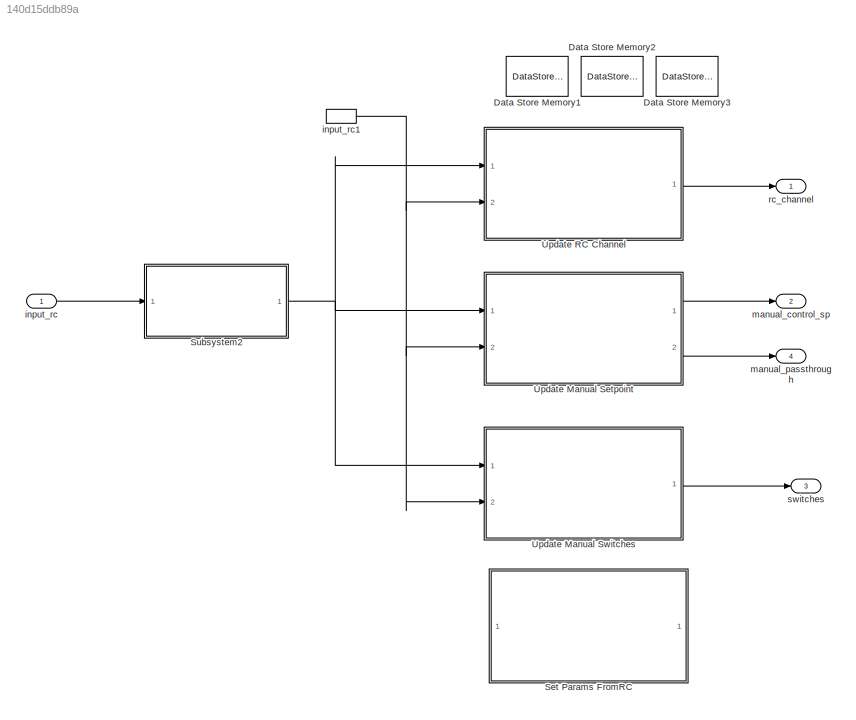
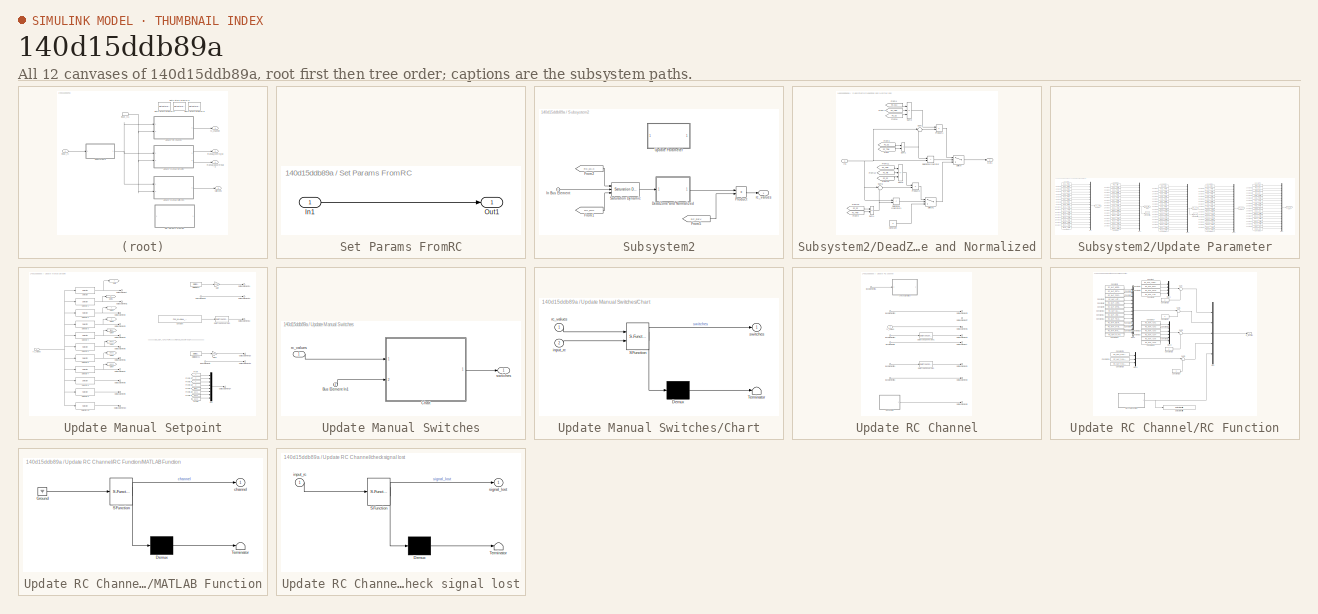
[diagram: thumbnail index - all 12 canvases of the model, root first then tree order]
MODEL slx_140d15ddb89a
KIND model
CONFIG AbsTol = auto
CONFIG EnableMultiTasking = off
CONFIG FixedStep = auto
CONFIG MaxStep = auto
CONFIG MinStep = auto
CONFIG RelTol = 1e-3
CONFIG SampleTimeConstraint = Unconstrained
CONFIG SolverName = VariableStepAuto
CONFIG StartTime = 0.0
CONFIG StopTime = 10.0
BLOCK [DataStoreMemory] Data Store Memory1
  DataStoreName = RC_MIN
  Dimensions = 18
  OutDataTypeStr = single
  ReadBeforeWriteMsg = warning
  ShowAdditionalParam = off
  SignalType = real
  WriteAfterReadMsg = warning
  WriteAfterWriteMsg = warning
BLOCK [DataStoreMemory] Data Store Memory2
  DataStoreName = RC_MAX
  Dimensions = 18
  OutDataTypeStr = single
  ReadBeforeWriteMsg = warning
  ShowAdditionalParam = off
  SignalType = real
  WriteAfterReadMsg = warning
  WriteAfterWriteMsg = warning
BLOCK [DataStoreMemory] Data Store Memory3
  DataStoreName = RC_MAP_FLIGHT_MODE_BUTTONS
  Dimensions = 6
  OutDataTypeStr = int8
  ReadBeforeWriteMsg = warning
  ShowAdditionalParam = off
  SignalType = real
  WriteAfterReadMsg = warning
  WriteAfterWriteMsg = warning
BLOCK [SubSystem] Set Params FromRC
  Commented = on
  Ports = [1, 1]
  RequestExecContextInheritance = off
BLOCK [Inport] Set Params FromRC/In1
BLOCK [Outport] Set Params FromRC/Out1
BLOCK [SubSystem] Subsystem2
  Ports = [1, 1]
  RequestExecContextInheritance = off
BLOCK [SubSystem] Subsystem2/DeadZone and Normalized
  Ports = [1, 1]
  RequestExecContextInheritance = off
BLOCK [Constant] Subsystem2/DeadZone and Normalized/Constant
  OutDataTypeStr = single
  Value = 0
BLOCK [From] Subsystem2/DeadZone and Normalized/From
  GotoTag = RC_TRIM
  TagVisibility = global
BLOCK [From] Subsystem2/DeadZone and Normalized/From10
  GotoTag = RC_DZ
  TagVisibility = global
BLOCK [From] Subsystem2/DeadZone and Normalized/From11
  GotoTag = RC_TRIM
  TagVisibility = global
BLOCK [From] Subsystem2/DeadZone and Normalized/From12
  GotoTag = RC_MIN
  TagVisibility = global
BLOCK [From] Subsystem2/DeadZone and Normalized/From13
  GotoTag = RC_DZ
  TagVisibility = global
BLOCK [From] Subsystem2/DeadZone and Normalized/From3
  GotoTag = RC_DZ
  TagVisibility = global
BLOCK [From] Subsystem2/DeadZone and Normalized/From4
  GotoTag = RC_MAX
  TagVisibility = global
BLOCK [From] Subsystem2/DeadZone and Normalized/From7
  GotoTag = RC_TRIM
  TagVisibility = global
BLOCK [From] Subsystem2/DeadZone and Normalized/From8
  GotoTag = RC_DZ
  TagVisibility = global
BLOCK [From] Subsystem2/DeadZone and Normalized/From9
  GotoTag = RC_TRIM
  TagVisibility = global
BLOCK [Inport] Subsystem2/DeadZone and Normalized/In1
BLOCK [Outport] Subsystem2/DeadZone and Normalized/Out1
BLOCK [Product] Subsystem2/DeadZone and Normalized/Product1
  Inputs = /*
  Ports = [2, 1]
BLOCK [Product] Subsystem2/DeadZone and Normalized/Product2
  Inputs = /*
  Ports = [2, 1]
BLOCK [RelationalOperator] Subsystem2/DeadZone and Normalized/Relational Operator
  InputSameDT = off
  Operator = <
  OutDataTypeStr = boolean
  Ports = [2, 1]
  RndMeth = Simplest
BLOCK [RelationalOperator] Subsystem2/DeadZone and Normalized/Relational Operator1
  InputSameDT = off
  Operator = <
  OutDataTypeStr = boolean
  Ports = [2, 1]
  RndMeth = Simplest
BLOCK [Sum] Subsystem2/DeadZone and Normalized/Sum1
  IconShape = rectangular
  Inputs = 2
  Ports = [2, 1]
BLOCK [Sum] Subsystem2/DeadZone and Normalized/Sum2
  Inputs = |+-
  Ports = [2, 1]
BLOCK [Sum] Subsystem2/DeadZone and Normalized/Sum3
  IconShape = rectangular
  Inputs = +--
  Ports = [3, 1]
BLOCK [Sum] Subsystem2/DeadZone and Normalized/Sum4
  IconShape = rectangular
  Inputs = -+
  Ports = [2, 1]
BLOCK [Sum] Subsystem2/DeadZone and Normalized/Sum5
  Inputs = |+-
  Ports = [2, 1]
BLOCK [Sum] Subsystem2/DeadZone and Normalized/Sum6
  IconShape = rectangular
  Inputs = +--
  Ports = [3, 1]
BLOCK [Switch] Subsystem2/DeadZone and Normalized/Switch
  Criteria = u2 > Threshold
  InputSameDT = off
  SaturateOnIntegerOverflow = off
BLOCK [Switch] Subsystem2/DeadZone and Normalized/Switch1
  Criteria = u2 > Threshold
  InputSameDT = off
  SaturateOnIntegerOverflow = off
BLOCK [From] Subsystem2/From1
  GotoTag = RC_MIN
  TagVisibility = global
BLOCK [From] Subsystem2/From2
  GotoTag = RC_MAX
  TagVisibility = global
BLOCK [From] Subsystem2/From5
  GotoTag = RC_REV
  TagVisibility = global
BLOCK [Inport] Subsystem2/In Bus Element
BLOCK [Product] Subsystem2/Product
  Ports = [2, 1]
BLOCK [Reference] Subsystem2/Saturation Dynamic  REF=simulink/Discontinuities/Saturation
Dynamic
  Ports = [3, 1]
  SourceBlock = simulink/Discontinuities/Saturation\nDynamic
  SourceProductBaseCode = SL
  SourceType = Saturation Dynamic
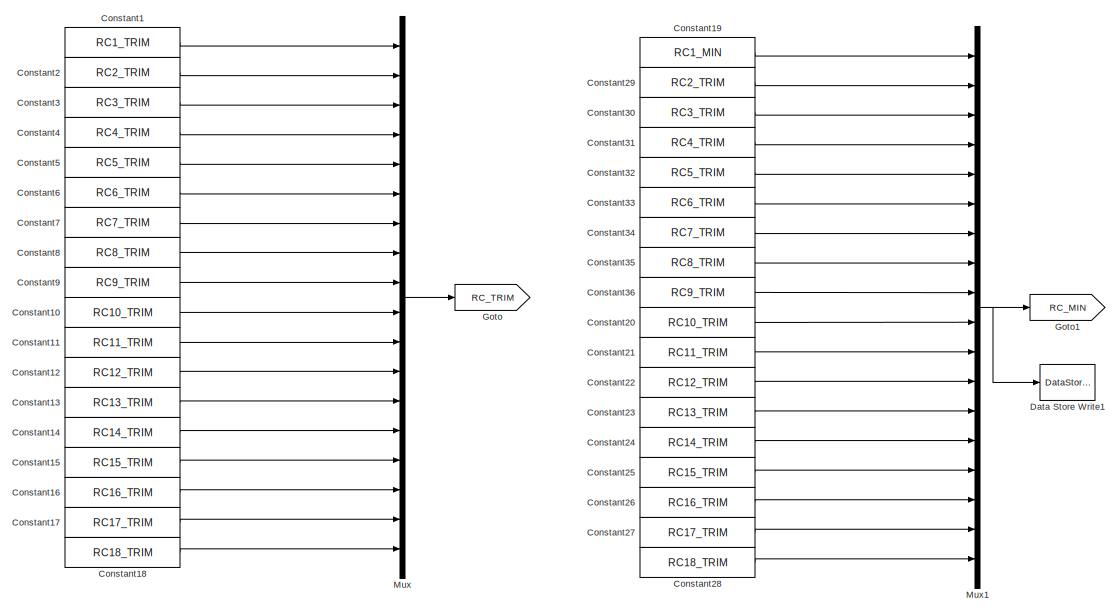
[diagram: Subsystem2/Update Parameter - part 1/3, left side, full height]
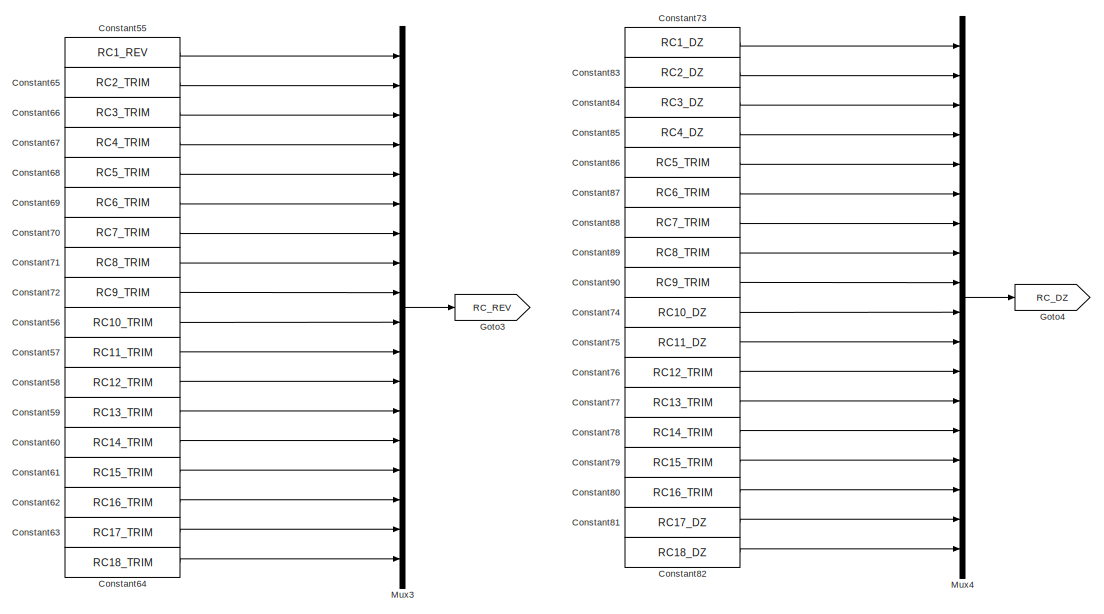
[diagram: Subsystem2/Update Parameter - part 2/3, right side, full height]
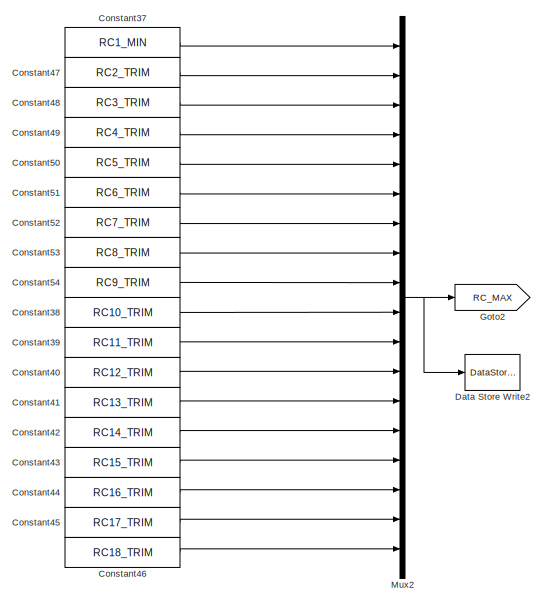
[diagram: Subsystem2/Update Parameter - part 3/3, center side, full height]
BLOCK [SubSystem] Subsystem2/Update Parameter
  Ports = []
  RequestExecContextInheritance = off
BLOCK [Constant] Subsystem2/Update Parameter/Constant1
  Value = RC1_TRIM
BLOCK [Constant] Subsystem2/Update Parameter/Constant10
  Value = RC10_TRIM
BLOCK [Constant] Subsystem2/Update Parameter/Constant11
  Value = RC11_TRIM
BLOCK [Constant] Subsystem2/Update Parameter/Constant12
  Value = RC12_TRIM
BLOCK [Constant] Subsystem2/Update Parameter/Constant13
  Value = RC13_TRIM
BLOCK [Constant] Subsystem2/Update Parameter/Constant14
  Value = RC14_TRIM
BLOCK [Constant] Subsystem2/Update Parameter/Constant15
  Value = RC15_TRIM
BLOCK [Constant] Subsystem2/Update Parameter/Constant16
  Value = RC16_TRIM
BLOCK [Constant] Subsystem2/Update Parameter/Constant17
  Value = RC17_TRIM
BLOCK [Constant] Subsystem2/Update Parameter/Constant18
  Value = RC18_TRIM
BLOCK [Constant] Subsystem2/Update Parameter/Constant19
  Value = RC1_MIN
BLOCK [Constant] Subsystem2/Update Parameter/Constant2
  Value = RC2_TRIM
BLOCK [Constant] Subsystem2/Update Parameter/Constant20
  Value = RC10_TRIM
BLOCK [Constant] Subsystem2/Update Parameter/Constant21
  Value = RC11_TRIM
BLOCK [Constant] Subsystem2/Update Parameter/Constant22
  Value = RC12_TRIM
BLOCK [Constant] Subsystem2/Update Parameter/Constant23
  Value = RC13_TRIM
BLOCK [Constant] Subsystem2/Update Parameter/Constant24
  Value = RC14_TRIM
BLOCK [Constant] Subsystem2/Update Parameter/Constant25
  Value = RC15_TRIM
BLOCK [Constant] Subsystem2/Update Parameter/Constant26
  Value = RC16_TRIM
BLOCK [Constant] Subsystem2/Update Parameter/Constant27
  Value = RC17_TRIM
BLOCK [Constant] Subsystem2/Update Parameter/Constant28
  Value = RC18_TRIM
BLOCK [Constant] Subsystem2/Update Parameter/Constant29
  Value = RC2_TRIM
BLOCK [Constant] Subsystem2/Update Parameter/Constant3
  Value = RC3_TRIM
BLOCK [Constant] Subsystem2/Update Parameter/Constant30
  Value = RC3_TRIM
BLOCK [Constant] Subsystem2/Update Parameter/Constant31
  Value = RC4_TRIM
BLOCK [Constant] Subsystem2/Update Parameter/Constant32
  Value = RC5_TRIM
BLOCK [Constant] Subsystem2/Update Parameter/Constant33
  Value = RC6_TRIM
BLOCK [Constant] Subsystem2/Update Parameter/Constant34
  Value = RC7_TRIM
BLOCK [Constant] Subsystem2/Update Parameter/Constant35
  Value = RC8_TRIM
BLOCK [Constant] Subsystem2/Update Parameter/Constant36
  Value = RC9_TRIM
BLOCK [Constant] Subsystem2/Update Parameter/Constant37
  Value = RC1_MIN
BLOCK [Constant] Subsystem2/Update Parameter/Constant38
  Value = RC10_TRIM
BLOCK [Constant] Subsystem2/Update Parameter/Constant39
  Value = RC11_TRIM
BLOCK [Constant] Subsystem2/Update Parameter/Constant4
  Value = RC4_TRIM
BLOCK [Constant] Subsystem2/Update Parameter/Constant40
  Value = RC12_TRIM
BLOCK [Constant] Subsystem2/Update Parameter/Constant41
  Value = RC13_TRIM
BLOCK [Constant] Subsystem2/Update Parameter/Constant42
  Value = RC14_TRIM
BLOCK [Constant] Subsystem2/Update Parameter/Constant43
  Value = RC15_TRIM
BLOCK [Constant] Subsystem2/Update Parameter/Constant44
  Value = RC16_TRIM
BLOCK [Constant] Subsystem2/Update Parameter/Constant45
  Value = RC17_TRIM
BLOCK [Constant] Subsystem2/Update Parameter/Constant46
  Value = RC18_TRIM
BLOCK [Constant] Subsystem2/Update Parameter/Constant47
  Value = RC2_TRIM
BLOCK [Constant] Subsystem2/Update Parameter/Constant48
  Value = RC3_TRIM
BLOCK [Constant] Subsystem2/Update Parameter/Constant49
  Value = RC4_TRIM
BLOCK [Constant] Subsystem2/Update Parameter/Constant5
  Value = RC5_TRIM
BLOCK [Constant] Subsystem2/Update Parameter/Constant50
  Value = RC5_TRIM
BLOCK [Constant] Subsystem2/Update Parameter/Constant51
  Value = RC6_TRIM
BLOCK [Constant] Subsystem2/Update Parameter/Constant52
  Value = RC7_TRIM
BLOCK [Constant] Subsystem2/Update Parameter/Constant53
  Value = RC8_TRIM
BLOCK [Constant] Subsystem2/Update Parameter/Constant54
  Value = RC9_TRIM
BLOCK [Constant] Subsystem2/Update Parameter/Constant55
  Value = RC1_REV
BLOCK [Constant] Subsystem2/Update Parameter/Constant56
  Value = RC10_TRIM
BLOCK [Constant] Subsystem2/Update Parameter/Constant57
  Value = RC11_TRIM
BLOCK [Constant] Subsystem2/Update Parameter/Constant58
  Value = RC12_TRIM
BLOCK [Constant] Subsystem2/Update Parameter/Constant59
  Value = RC13_TRIM
BLOCK [Constant] Subsystem2/Update Parameter/Constant6
  Value = RC6_TRIM
BLOCK [Constant] Subsystem2/Update Parameter/Constant60
  Value = RC14_TRIM
BLOCK [Constant] Subsystem2/Update Parameter/Constant61
  Value = RC15_TRIM
BLOCK [Constant] Subsystem2/Update Parameter/Constant62
  Value = RC16_TRIM
BLOCK [Constant] Subsystem2/Update Parameter/Constant63
  Value = RC17_TRIM
BLOCK [Constant] Subsystem2/Update Parameter/Constant64
  Value = RC18_TRIM
BLOCK [Constant] Subsystem2/Update Parameter/Constant65
  Value = RC2_TRIM
BLOCK [Constant] Subsystem2/Update Parameter/Constant66
  Value = RC3_TRIM
BLOCK [Constant] Subsystem2/Update Parameter/Constant67
  Value = RC4_TRIM
BLOCK [Constant] Subsystem2/Update Parameter/Constant68
  Value = RC5_TRIM
BLOCK [Constant] Subsystem2/Update Parameter/Constant69
  Value = RC6_TRIM
BLOCK [Constant] Subsystem2/Update Parameter/Constant7
  Value = RC7_TRIM
BLOCK [Constant] Subsystem2/Update Parameter/Constant70
  Value = RC7_TRIM
BLOCK [Constant] Subsystem2/Update Parameter/Constant71
  Value = RC8_TRIM
BLOCK [Constant] Subsystem2/Update Parameter/Constant72
  Value = RC9_TRIM
BLOCK [Constant] Subsystem2/Update Parameter/Constant73
  Value = RC1_DZ
BLOCK [Constant] Subsystem2/Update Parameter/Constant74
  Value = RC10_DZ
BLOCK [Constant] Subsystem2/Update Parameter/Constant75
  Value = RC11_DZ
BLOCK [Constant] Subsystem2/Update Parameter/Constant76
  Value = RC12_TRIM
BLOCK [Constant] Subsystem2/Update Parameter/Constant77
  Value = RC13_TRIM
BLOCK [Constant] Subsystem2/Update Parameter/Constant78
  Value = RC14_TRIM
BLOCK [Constant] Subsystem2/Update Parameter/Constant79
  Value = RC15_TRIM
BLOCK [Constant] Subsystem2/Update Parameter/Constant8
  Value = RC8_TRIM
BLOCK [Constant] Subsystem2/Update Parameter/Constant80
  Value = RC16_TRIM
BLOCK [Constant] Subsystem2/Update Parameter/Constant81
  Value = RC17_DZ
BLOCK [Constant] Subsystem2/Update Parameter/Constant82
  Value = RC18_DZ
BLOCK [Constant] Subsystem2/Update Parameter/Constant83
  Value = RC2_DZ
BLOCK [Constant] Subsystem2/Update Parameter/Constant84
  Value = RC3_DZ
BLOCK [Constant] Subsystem2/Update Parameter/Constant85
  Value = RC4_DZ
BLOCK [Constant] Subsystem2/Update Parameter/Constant86
  Value = RC5_TRIM
BLOCK [Constant] Subsystem2/Update Parameter/Constant87
  Value = RC6_TRIM
BLOCK [Constant] Subsystem2/Update Parameter/Constant88
  Value = RC7_TRIM
BLOCK [Constant] Subsystem2/Update Parameter/Constant89
  Value = RC8_TRIM
BLOCK [Constant] Subsystem2/Update Parameter/Constant9
  Value = RC9_TRIM
BLOCK [Constant] Subsystem2/Update Parameter/Constant90
  Value = RC9_TRIM
BLOCK [DataStoreWrite] Subsystem2/Update Parameter/Data Store Write1
  DataStoreName = RC_MIN
  IndexOptions = Index vector (dialog)
  Indices = 1
  OutputSizes = 1
  Ports = [1]
BLOCK [DataStoreWrite] Subsystem2/Update Parameter/Data Store Write2
  DataStoreName = RC_MAX
  IndexOptions = Index vector (dialog)
  Indices = 1
  OutputSizes = 1
  Ports = [1]
BLOCK [Goto] Subsystem2/Update Parameter/Goto
  GotoTag = RC_TRIM
  TagVisibility = global
BLOCK [Goto] Subsystem2/Update Parameter/Goto1
  GotoTag = RC_MIN
  TagVisibility = global
BLOCK [Goto] Subsystem2/Update Parameter/Goto2
  GotoTag = RC_MAX
  TagVisibility = global
BLOCK [Goto] Subsystem2/Update Parameter/Goto3
  GotoTag = RC_REV
  TagVisibility = global
BLOCK [Goto] Subsystem2/Update Parameter/Goto4
  GotoTag = RC_DZ
  TagVisibility = global
BLOCK [Mux] Subsystem2/Update Parameter/Mux
  DisplayOption = bar
  Inputs = 18
  Ports = [18, 1]
BLOCK [Mux] Subsystem2/Update Parameter/Mux1
  DisplayOption = bar
  Inputs = 18
  Ports = [18, 1]
BLOCK [Mux] Subsystem2/Update Parameter/Mux2
  DisplayOption = bar
  Inputs = 18
  Ports = [18, 1]
BLOCK [Mux] Subsystem2/Update Parameter/Mux3
  DisplayOption = bar
  Inputs = 18
  Ports = [18, 1]
BLOCK [Mux] Subsystem2/Update Parameter/Mux4
  DisplayOption = bar
  Inputs = 18
  Ports = [18, 1]
BLOCK [Outport] Subsystem2/rc_values
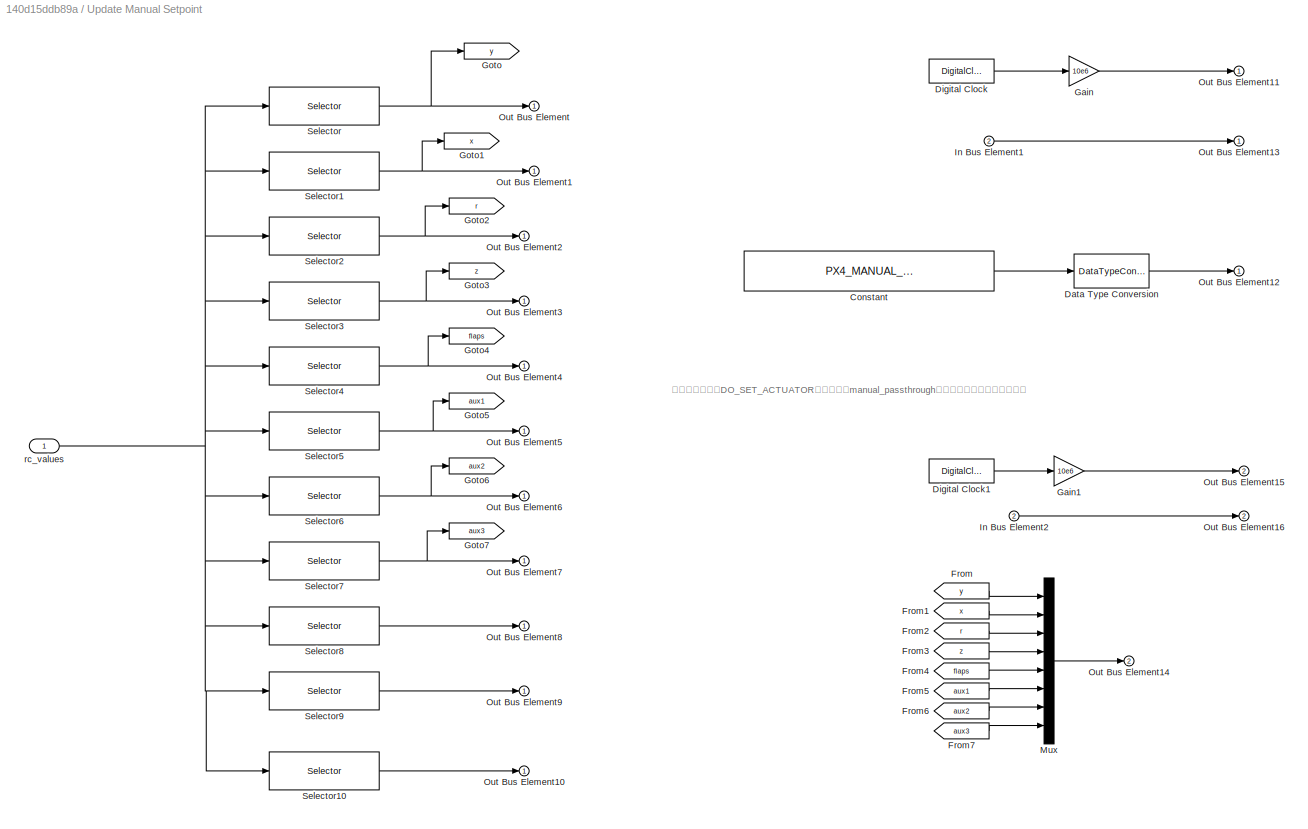
BLOCK [SubSystem] Update Manual Setpoint
  Ports = [2, 2]
  RequestExecContextInheritance = off
BLOCK [Constant] Update Manual Setpoint/Constant
  Value = PX4_MANUAL_CONTROL_SETPOINT.SOURCE_RC
BLOCK [DataTypeConversion] Update Manual Setpoint/Data Type Conversion
  RndMeth = Floor
  SaturateOnIntegerOverflow = off
BLOCK [DigitalClock] Update Manual Setpoint/Digital Clock
BLOCK [DigitalClock] Update Manual Setpoint/Digital Clock1
BLOCK [From] Update Manual Setpoint/From
  GotoTag = y
BLOCK [From] Update Manual Setpoint/From1
  GotoTag = x
BLOCK [From] Update Manual Setpoint/From2
  GotoTag = r
BLOCK [From] Update Manual Setpoint/From3
  GotoTag = z
BLOCK [From] Update Manual Setpoint/From4
  GotoTag = flaps
BLOCK [From] Update Manual Setpoint/From5
  GotoTag = aux1
BLOCK [From] Update Manual Setpoint/From6
  GotoTag = aux2
BLOCK [From] Update Manual Setpoint/From7
  GotoTag = aux3
BLOCK [Gain] Update Manual Setpoint/Gain
  Gain = 10e6
  OutDataTypeStr = uint64
BLOCK [Gain] Update Manual Setpoint/Gain1
  Gain = 10e6
  OutDataTypeStr = uint64
BLOCK [Goto] Update Manual Setpoint/Goto
  GotoTag = y
BLOCK [Goto] Update Manual Setpoint/Goto1
  GotoTag = x
BLOCK [Goto] Update Manual Setpoint/Goto2
  GotoTag = r
BLOCK [Goto] Update Manual Setpoint/Goto3
  GotoTag = z
BLOCK [Goto] Update Manual Setpoint/Goto4
  GotoTag = flaps
BLOCK [Goto] Update Manual Setpoint/Goto5
  GotoTag = aux1
BLOCK [Goto] Update Manual Setpoint/Goto6
  GotoTag = aux2
BLOCK [Goto] Update Manual Setpoint/Goto7
  GotoTag = aux3
BLOCK [Inport] Update Manual Setpoint/In Bus Element1
  Port = 2
BLOCK [Inport] Update Manual Setpoint/In Bus Element2
  Port = 2
BLOCK [Mux] Update Manual Setpoint/Mux
  DisplayOption = bar
  Inputs = 8
  Ports = [8, 1]
BLOCK [Outport] Update Manual Setpoint/Out Bus Element
BLOCK [Outport] Update Manual Setpoint/Out Bus Element1
BLOCK [Outport] Update Manual Setpoint/Out Bus Element10
BLOCK [Outport] Update Manual Setpoint/Out Bus Element11
BLOCK [Outport] Update Manual Setpoint/Out Bus Element12
BLOCK [Outport] Update Manual Setpoint/Out Bus Element13
BLOCK [Outport] Update Manual Setpoint/Out Bus Element14
  Port = 2
BLOCK [Outport] Update Manual Setpoint/Out Bus Element15
  Port = 2
BLOCK [Outport] Update Manual Setpoint/Out Bus Element16
  Port = 2
BLOCK [Outport] Update Manual Setpoint/Out Bus Element2
BLOCK [Outport] Update Manual Setpoint/Out Bus Element3
BLOCK [Outport] Update Manual Setpoint/Out Bus Element4
BLOCK [Outport] Update Manual Setpoint/Out Bus Element5
BLOCK [Outport] Update Manual Setpoint/Out Bus Element6
BLOCK [Outport] Update Manual Setpoint/Out Bus Element7
BLOCK [Outport] Update Manual Setpoint/Out Bus Element8
BLOCK [Outport] Update Manual Setpoint/Out Bus Element9
BLOCK [Selector] Update Manual Setpoint/Selector
  AttributesFormatString = %<Indices>
  IndexOptions = Index vector (dialog)
  Indices = RC_MAP_ROLL
  InputPortWidth = 18
  OutputSizes = 1
  Ports = [1, 1]
BLOCK [Selector] Update Manual Setpoint/Selector1
  AttributesFormatString = %<Indices>
  IndexOptions = Index vector (dialog)
  Indices = RC_MAP_PITCH
  InputPortWidth = 18
  OutputSizes = 1
  Ports = [1, 1]
BLOCK [Selector] Update Manual Setpoint/Selector10
  AttributesFormatString = %<Indices>
  IndexOptions = Index vector (dialog)
  Indices = RC_MAP_AUX6
  InputPortWidth = 18
  OutputSizes = 1
  Ports = [1, 1]
BLOCK [Selector] Update Manual Setpoint/Selector2
  AttributesFormatString = %<Indices>
  IndexOptions = Index vector (dialog)
  Indices = RC_MAP_YAW
  InputPortWidth = 18
  OutputSizes = 1
  Ports = [1, 1]
BLOCK [Selector] Update Manual Setpoint/Selector3
  AttributesFormatString = %<Indices>
  IndexOptions = Index vector (dialog)
  Indices = RC_MAP_THROTTLE
  InputPortWidth = 18
  OutputSizes = 1
  Ports = [1, 1]
BLOCK [Selector] Update Manual Setpoint/Selector4
  AttributesFormatString = %<Indices>
  IndexOptions = Index vector (dialog)
  Indices = RC_MAP_FLAPS
  InputPortWidth = 18
  OutputSizes = 1
  Ports = [1, 1]
BLOCK [Selector] Update Manual Setpoint/Selector5
  AttributesFormatString = %<Indices>
  IndexOptions = Index vector (dialog)
  Indices = RC_MAP_AUX1
  InputPortWidth = 18
  OutputSizes = 1
  Ports = [1, 1]
BLOCK [Selector] Update Manual Setpoint/Selector6
  AttributesFormatString = %<Indices>
  IndexOptions = Index vector (dialog)
  Indices = RC_MAP_AUX2
  InputPortWidth = 18
  OutputSizes = 1
  Ports = [1, 1]
BLOCK [Selector] Update Manual Setpoint/Selector7
  AttributesFormatString = %<Indices>
  IndexOptions = Index vector (dialog)
  Indices = RC_MAP_AUX3
  InputPortWidth = 18
  OutputSizes = 1
  Ports = [1, 1]
BLOCK [Selector] Update Manual Setpoint/Selector8
  AttributesFormatString = %<Indices>
  IndexOptions = Index vector (dialog)
  Indices = RC_MAP_AUX4
  InputPortWidth = 18
  OutputSizes = 1
  Ports = [1, 1]
BLOCK [Selector] Update Manual Setpoint/Selector9
  AttributesFormatString = %<Indices>
  IndexOptions = Index vector (dialog)
  Indices = RC_MAP_AUX5
  InputPortWidth = 18
  OutputSizes = 1
  Ports = [1, 1]
BLOCK [Inport] Update Manual Setpoint/rc_values
BLOCK [SubSystem] Update Manual Switches
  Ports = [2, 1]
  RequestExecContextInheritance = off
BLOCK [Inport] Update Manual Switches/Bus Element In1
  Port = 2
BLOCK [SubSystem] Update Manual Switches/Chart
  ErrorFcn = Stateflow.Translate.translate
  PermitHierarchicalResolution = ExplicitOnly
  Ports = [2, 1]
  RequestExecContextInheritance = off
  SFBlockType = Chart
  TreatAsAtomicUnit = on
BLOCK [Demux] Update Manual Switches/Chart/ Demux 
  Outputs = 1
  Ports = [1, 1]
BLOCK [S-Function] Update Manual Switches/Chart/ SFunction 
  EnableBusSupport = on
  FunctionName = sf_sfun
  Parameters = RC_ACRO_TH,RC_ARMSWITCH_TH,RC_ASSIST_TH,RC_AUTO_TH,RC_GEAR_TH,RC_KILLSWITCH_TH,RC_LOITER_TH,RC_MAN_TH,RC_MAP_ACRO_SW,RC_MAP_ARM_SW,RC_MAP_FLTMODE,RC_MAP_FLTM_BTN,RC_MAP_GEAR_SW,RC_MAP_KILL_SW,RC_MAP_LOITER_SW,RC_MAP_MAN_SW,RC_MAP_MODE_SW,RC_MAP_OFFB_SW,RC_MAP_POSCTL_SW,RC_MAP_RETURN_SW,RC_MAP_STAB_SW,RC_MAP_TRANS_SW,RC_OFFB_TH,RC_POSCTL_TH,RC_RETURN_TH,RC_STAB_TH,RC_TRANS_TH
  PortCounts = [2 2]
  Ports = [2, 2]
  SFcnIsStateOwnerBlock = off
  SFunctionDeploymentMode = off
  Tag = Stateflow S-Function 1
BLOCK [Terminator] Update Manual Switches/Chart/ Terminator 
BLOCK [Inport] Update Manual Switches/Chart/input_rc
  Port = 2
BLOCK [Inport] Update Manual Switches/Chart/rc_values
BLOCK [Outport] Update Manual Switches/Chart/switches
BLOCK [Inport] Update Manual Switches/rc_values
BLOCK [Outport] Update Manual Switches/swtiches
BLOCK [SubSystem] Update RC Channel
  Ports = [2, 1]
  RequestExecContextInheritance = off
BLOCK [Inport] Update RC Channel/Bus Element In
  Port = 2
BLOCK [Inport] Update RC Channel/Bus Element In1
  Port = 2
BLOCK [Inport] Update RC Channel/Bus Element In2
  Port = 2
BLOCK [Inport] Update RC Channel/Bus Element In3
  Port = 2
BLOCK [Inport] Update RC Channel/Bus Element In4
  Port = 2
BLOCK [Inport] Update RC Channel/Bus Element In5
  Port = 2
BLOCK [DataTypeConversion] Update RC Channel/Data Type Conversion
  RndMeth = Floor
  SaturateOnIntegerOverflow = off
BLOCK [DataTypeConversion] Update RC Channel/Data Type Conversion1
  RndMeth = Floor
  SaturateOnIntegerOverflow = off
BLOCK [Outport] Update RC Channel/Out Bus Element
BLOCK [Outport] Update RC Channel/Out Bus Element1
BLOCK [Outport] Update RC Channel/Out Bus Element2
BLOCK [Outport] Update RC Channel/Out Bus Element3
BLOCK [Outport] Update RC Channel/Out Bus Element4
BLOCK [Outport] Update RC Channel/Out Bus Element5
BLOCK [Outport] Update RC Channel/Out Bus Element6
BLOCK [Outport] Update RC Channel/Out Bus Element7
BLOCK [SubSystem] Update RC Channel/RC Function
  Ports = [0, 1]
  RequestExecContextInheritance = off
BLOCK [Constant] Update RC Channel/RC Function/Constant
  Value = RC_MAP_THROTTLE
BLOCK [Constant] Update RC Channel/RC Function/Constant1
  Value = RC_MAP_ROLL
BLOCK [Constant] Update RC Channel/RC Function/Constant10
  Value = RC_MAP_KILL_SW
BLOCK [Constant] Update RC Channel/RC Function/Constant11
  Value = RC_MAP_ARM_SW
BLOCK [Constant] Update RC Channel/RC Function/Constant12
  Value = RC_MAP_TRANS_SW
BLOCK [Constant] Update RC Channel/RC Function/Constant13
  Value = RC_MAP_GEAR_SW
BLOCK [Constant] Update RC Channel/RC Function/Constant14
  Value = RC_MAP_STAB_SW
BLOCK [Constant] Update RC Channel/RC Function/Constant15
  Value = RC_MAP_MAN_SW
BLOCK [Constant] Update RC Channel/RC Function/Constant16
  Value = RC_MAP_FLAPS
BLOCK [Constant] Update RC Channel/RC Function/Constant17
  Value = RC_MAP_AUX1
BLOCK [Constant] Update RC Channel/RC Function/Constant18
  Value = RC_MAP_AUX2
BLOCK [Constant] Update RC Channel/RC Function/Constant19
  Value = RC_MAP_AUX3
BLOCK [Constant] Update RC Channel/RC Function/Constant2
  Value = RC_MAP_PITCH
BLOCK [Constant] Update RC Channel/RC Function/Constant20
  Value = RC_MAP_AUX4
BLOCK [Constant] Update RC Channel/RC Function/Constant21
  Value = RC_MAP_AUX5
BLOCK [Constant] Update RC Channel/RC Function/Constant22
  Value = RC_MAP_AUX6
BLOCK [Constant] Update RC Channel/RC Function/Constant23
  Value = RC_MAP_PARAM1
BLOCK [Constant] Update RC Channel/RC Function/Constant24
  Value = RC_MAP_PARAM2
BLOCK [Constant] Update RC Channel/RC Function/Constant25
  Value = RC_MAP_PARAM3
BLOCK [Constant] Update RC Channel/RC Function/Constant26
  OutDataTypeStr = int8
BLOCK [Constant] Update RC Channel/RC Function/Constant27
  OutDataTypeStr = int8
BLOCK [Constant] Update RC Channel/RC Function/Constant28
  OutDataTypeStr = int8
BLOCK [Constant] Update RC Channel/RC Function/Constant29
  OutDataTypeStr = int8
BLOCK [Constant] Update RC Channel/RC Function/Constant3
  Value = RC_MAP_YAW
BLOCK [Constant] Update RC Channel/RC Function/Constant4
  Value = RC_MAP_MODE_SW
BLOCK [Constant] Update RC Channel/RC Function/Constant5
  Value = RC_MAP_RETURN_SW
BLOCK [Constant] Update RC Channel/RC Function/Constant6
  Value = RC_MAP_LOITER_SW
BLOCK [Constant] Update RC Channel/RC Function/Constant7
  Value = RC_MAP_POSCTL_SW
BLOCK [Constant] Update RC Channel/RC Function/Constant8
  Value = RC_MAP_ACRO_SW
BLOCK [Constant] Update RC Channel/RC Function/Constant9
  Value = RC_MAP_OFFB_SW
BLOCK [DataStoreWrite] Update RC Channel/RC Function/Data Store Write
  DataStoreName = RC_MAP_FLIGHT_MODE_BUTTONS
  IndexOptions = Index vector (dialog)
  Indices = 1
  OutputSizes = 1
  Ports = [1]
BLOCK [SubSystem] Update RC Channel/RC Function/MATLAB Function
  ErrorFcn = Stateflow.Translate.translate
  PermitHierarchicalResolution = ExplicitOnly
  Ports = [0, 1]
  RequestExecContextInheritance = off
  SFBlockType = MATLAB Function
  TreatAsAtomicUnit = on
BLOCK [Demux] Update RC Channel/RC Function/MATLAB Function/ Demux 
  Outputs = 1
  Ports = [1, 1]
BLOCK [Ground] Update RC Channel/RC Function/MATLAB Function/ Ground 
BLOCK [S-Function] Update RC Channel/RC Function/MATLAB Function/ SFunction 
  EnableBusSupport = on
  FunctionName = sf_sfun
  Parameters = RC_MAP_FLTM_BTN
  PortCounts = [1 2]
  Ports = [1, 2]
  SFcnIsStateOwnerBlock = off
  SFunctionDeploymentMode = off
  Tag = Stateflow S-Function 2
BLOCK [Terminator] Update RC Channel/RC Function/MATLAB Function/ Terminator 
BLOCK [Outport] Update RC Channel/RC Function/MATLAB Function/channel
BLOCK [Mux] Update RC Channel/RC Function/Mux
  DisplayOption = bar
  Inputs = 5
  Ports = [5, 1]
BLOCK [Mux] Update RC Channel/RC Function/Mux1
  DisplayOption = bar
  Ports = [4, 1]
BLOCK [Mux] Update RC Channel/RC Function/Mux2
  DisplayOption = bar
  Inputs = 13
  Ports = [13, 1]
BLOCK [Mux] Update RC Channel/RC Function/Mux3
  DisplayOption = bar
  Inputs = 6
  Ports = [6, 1]
BLOCK [Mux] Update RC Channel/RC Function/Mux4
  DisplayOption = bar
  Inputs = 3
  Ports = [3, 1]
BLOCK [Sum] Update RC Channel/RC Function/Sum
  Inputs = |+-
  OutDataTypeStr = int8
  Ports = [2, 1]
BLOCK [Sum] Update RC Channel/RC Function/Sum1
  Inputs = |+-
  OutDataTypeStr = int8
  Ports = [2, 1]
BLOCK [Sum] Update RC Channel/RC Function/Sum2
  Inputs = |+-
  OutDataTypeStr = int8
  Ports = [2, 1]
BLOCK [Sum] Update RC Channel/RC Function/Sum3
  Inputs = |+-
  OutDataTypeStr = int8
  Ports = [2, 1]
BLOCK [Outport] Update RC Channel/RC Function/rc_function
BLOCK [SubSystem] Update RC Channel/check signal lost
  ErrorFcn = Stateflow.Translate.translate
  PermitHierarchicalResolution = ExplicitOnly
  Ports = [1, 1]
  RequestExecContextInheritance = off
  SFBlockType = Chart
  TreatAsAtomicUnit = on
BLOCK [Demux] Update RC Channel/check signal lost/ Demux 
  Outputs = 1
  Ports = [1, 1]
BLOCK [S-Function] Update RC Channel/check signal lost/ SFunction 
  EnableBusSupport = on
  FunctionName = sf_sfun
  Parameters = RC_FAILS_THR,RC_MAP_FAILSAFE
  PortCounts = [1 2]
  Ports = [1, 2]
  SFcnIsStateOwnerBlock = off
  SFunctionDeploymentMode = off
  Tag = Stateflow S-Function 3
BLOCK [Terminator] Update RC Channel/check signal lost/ Terminator 
BLOCK [Inport] Update RC Channel/check signal lost/input_rc
BLOCK [Outport] Update RC Channel/check signal lost/signal_lost
BLOCK [Inport] Update RC Channel/rc_values
BLOCK [Inport] input_rc
  OutDataTypeStr = Bus: px4_input_rc
BLOCK [InportShadow] input_rc1
  OutDataTypeStr = Bus: px4_input_rc
BLOCK [Outport] manual_control_sp
  OutDataTypeStr = Bus: px4_manual_control_setpoint
  Port = 2
BLOCK [Outport] manual_passthrough
  OutDataTypeStr = Bus: px4_actuator_controls
  Port = 4
BLOCK [Outport] rc_channel
  OutDataTypeStr = Bus: px4_rc_channels
BLOCK [Outport] switches
  OutDataTypeStr = Bus: px4_manual_control_switches
  Port = 3
ANNOTATION Update Manual Setpoint: 这里需要注意，DO_SET_ACTUATOR指令会设置manual_passthrough消息，因此这个地方会覆盖哈
LINE Set Params FromRC/In1:1 -> Set Params FromRC/Out1:1
LINE Subsystem2/DeadZone and Normalized/Constant:1 -> Subsystem2/DeadZone and Normalized/Switch1:3
LINE Subsystem2/DeadZone and Normalized/From10:1 -> Subsystem2/DeadZone and Normalized/Sum4:1
LINE Subsystem2/DeadZone and Normalized/From11:1 -> Subsystem2/DeadZone and Normalized/Sum6:1
LINE Subsystem2/DeadZone and Normalized/From12:1 -> Subsystem2/DeadZone and Normalized/Sum6:2
LINE Subsystem2/DeadZone and Normalized/From13:1 -> Subsystem2/DeadZone and Normalized/Sum6:3
LINE Subsystem2/DeadZone and Normalized/From3:1 -> Subsystem2/DeadZone and Normalized/Sum1:1
LINE Subsystem2/DeadZone and Normalized/From4:1 -> Subsystem2/DeadZone and Normalized/Sum3:1
LINE Subsystem2/DeadZone and Normalized/From7:1 -> Subsystem2/DeadZone and Normalized/Sum3:2
LINE Subsystem2/DeadZone and Normalized/From8:1 -> Subsystem2/DeadZone and Normalized/Sum3:3
LINE Subsystem2/DeadZone and Normalized/From9:1 -> Subsystem2/DeadZone and Normalized/Sum4:2
LINE Subsystem2/DeadZone and Normalized/From:1 -> Subsystem2/DeadZone and Normalized/Sum1:2
NET Subsystem2/DeadZone and Normalized/In1:1 -> Subsystem2/DeadZone and Normalized/Relational Operator1:1, Subsystem2/DeadZone and Normalized/Relational Operator:2, Subsystem2/DeadZone and Normalized/Sum2:1, Subsystem2/DeadZone and Normalized/Sum5:1
LINE Subsystem2/DeadZone and Normalized/Product1:1 -> Subsystem2/DeadZone and Normalized/Switch:1
LINE Subsystem2/DeadZone and Normalized/Product2:1 -> Subsystem2/DeadZone and Normalized/Switch1:1
LINE Subsystem2/DeadZone and Normalized/Relational Operator1:1 -> Subsystem2/DeadZone and Normalized/Switch1:2
LINE Subsystem2/DeadZone and Normalized/Relational Operator:1 -> Subsystem2/DeadZone and Normalized/Switch:2
NET Subsystem2/DeadZone and Normalized/Sum1:1 -> Subsystem2/DeadZone and Normalized/Relational Operator:1, Subsystem2/DeadZone and Normalized/Sum2:2
LINE Subsystem2/DeadZone and Normalized/Sum2:1 -> Subsystem2/DeadZone and Normalized/Product1:2
LINE Subsystem2/DeadZone and Normalized/Sum3:1 -> Subsystem2/DeadZone and Normalized/Product1:1
NET Subsystem2/DeadZone and Normalized/Sum4:1 -> Subsystem2/DeadZone and Normalized/Relational Operator1:2, Subsystem2/DeadZone and Normalized/Sum5:2
LINE Subsystem2/DeadZone and Normalized/Sum5:1 -> Subsystem2/DeadZone and Normalized/Product2:2
LINE Subsystem2/DeadZone and Normalized/Sum6:1 -> Subsystem2/DeadZone and Normalized/Product2:1
LINE Subsystem2/DeadZone and Normalized/Switch1:1 -> Subsystem2/DeadZone and Normalized/Switch:3
LINE Subsystem2/DeadZone and Normalized/Switch:1 -> Subsystem2/DeadZone and Normalized/Out1:1
LINE Subsystem2/DeadZone and Normalized:1 -> Subsystem2/Product:1
LINE Subsystem2/From1:1 -> Subsystem2/Saturation Dynamic:3
LINE Subsystem2/From2:1 -> Subsystem2/Saturation Dynamic:1
LINE Subsystem2/From5:1 -> Subsystem2/Product:2
LINE Subsystem2/In Bus Element:1 -> Subsystem2/Saturation Dynamic:2
LINE Subsystem2/Product:1 -> Subsystem2/rc_values:1
LINE Subsystem2/Saturation Dynamic:1 -> Subsystem2/DeadZone and Normalized:1
LINE Subsystem2/Update Parameter/Constant10:1 -> Subsystem2/Update Parameter/Mux:10
LINE Subsystem2/Update Parameter/Constant11:1 -> Subsystem2/Update Parameter/Mux:11
LINE Subsystem2/Update Parameter/Constant12:1 -> Subsystem2/Update Parameter/Mux:12
LINE Subsystem2/Update Parameter/Constant13:1 -> Subsystem2/Update Parameter/Mux:13
LINE Subsystem2/Update Parameter/Constant14:1 -> Subsystem2/Update Parameter/Mux:14
LINE Subsystem2/Update Parameter/Constant15:1 -> Subsystem2/Update Parameter/Mux:15
LINE Subsystem2/Update Parameter/Constant16:1 -> Subsystem2/Update Parameter/Mux:16
LINE Subsystem2/Update Parameter/Constant17:1 -> Subsystem2/Update Parameter/Mux:17
LINE Subsystem2/Update Parameter/Constant18:1 -> Subsystem2/Update Parameter/Mux:18
LINE Subsystem2/Update Parameter/Constant19:1 -> Subsystem2/Update Parameter/Mux1:1
LINE Subsystem2/Update Parameter/Constant1:1 -> Subsystem2/Update Parameter/Mux:1
LINE Subsystem2/Update Parameter/Constant20:1 -> Subsystem2/Update Parameter/Mux1:10
LINE Subsystem2/Update Parameter/Constant21:1 -> Subsystem2/Update Parameter/Mux1:11
LINE Subsystem2/Update Parameter/Constant22:1 -> Subsystem2/Update Parameter/Mux1:12
LINE Subsystem2/Update Parameter/Constant23:1 -> Subsystem2/Update Parameter/Mux1:13
LINE Subsystem2/Update Parameter/Constant24:1 -> Subsystem2/Update Parameter/Mux1:14
LINE Subsystem2/Update Parameter/Constant25:1 -> Subsystem2/Update Parameter/Mux1:15
LINE Subsystem2/Update Parameter/Constant26:1 -> Subsystem2/Update Parameter/Mux1:16
LINE Subsystem2/Update Parameter/Constant27:1 -> Subsystem2/Update Parameter/Mux1:17
LINE Subsystem2/Update Parameter/Constant28:1 -> Subsystem2/Update Parameter/Mux1:18
LINE Subsystem2/Update Parameter/Constant29:1 -> Subsystem2/Update Parameter/Mux1:2
LINE Subsystem2/Update Parameter/Constant2:1 -> Subsystem2/Update Parameter/Mux:2
LINE Subsystem2/Update Parameter/Constant30:1 -> Subsystem2/Update Parameter/Mux1:3
LINE Subsystem2/Update Parameter/Constant31:1 -> Subsystem2/Update Parameter/Mux1:4
LINE Subsystem2/Update Parameter/Constant32:1 -> Subsystem2/Update Parameter/Mux1:5
LINE Subsystem2/Update Parameter/Constant33:1 -> Subsystem2/Update Parameter/Mux1:6
LINE Subsystem2/Update Parameter/Constant34:1 -> Subsystem2/Update Parameter/Mux1:7
LINE Subsystem2/Update Parameter/Constant35:1 -> Subsystem2/Update Parameter/Mux1:8
LINE Subsystem2/Update Parameter/Constant36:1 -> Subsystem2/Update Parameter/Mux1:9
LINE Subsystem2/Update Parameter/Constant37:1 -> Subsystem2/Update Parameter/Mux2:1
LINE Subsystem2/Update Parameter/Constant38:1 -> Subsystem2/Update Parameter/Mux2:10
LINE Subsystem2/Update Parameter/Constant39:1 -> Subsystem2/Update Parameter/Mux2:11
LINE Subsystem2/Update Parameter/Constant3:1 -> Subsystem2/Update Parameter/Mux:3
LINE Subsystem2/Update Parameter/Constant40:1 -> Subsystem2/Update Parameter/Mux2:12
LINE Subsystem2/Update Parameter/Constant41:1 -> Subsystem2/Update Parameter/Mux2:13
LINE Subsystem2/Update Parameter/Constant42:1 -> Subsystem2/Update Parameter/Mux2:14
LINE Subsystem2/Update Parameter/Constant43:1 -> Subsystem2/Update Parameter/Mux2:15
LINE Subsystem2/Update Parameter/Constant44:1 -> Subsystem2/Update Parameter/Mux2:16
LINE Subsystem2/Update Parameter/Constant45:1 -> Subsystem2/Update Parameter/Mux2:17
LINE Subsystem2/Update Parameter/Constant46:1 -> Subsystem2/Update Parameter/Mux2:18
LINE Subsystem2/Update Parameter/Constant47:1 -> Subsystem2/Update Parameter/Mux2:2
LINE Subsystem2/Update Parameter/Constant48:1 -> Subsystem2/Update Parameter/Mux2:3
LINE Subsystem2/Update Parameter/Constant49:1 -> Subsystem2/Update Parameter/Mux2:4
LINE Subsystem2/Update Parameter/Constant4:1 -> Subsystem2/Update Parameter/Mux:4
LINE Subsystem2/Update Parameter/Constant50:1 -> Subsystem2/Update Parameter/Mux2:5
LINE Subsystem2/Update Parameter/Constant51:1 -> Subsystem2/Update Parameter/Mux2:6
LINE Subsystem2/Update Parameter/Constant52:1 -> Subsystem2/Update Parameter/Mux2:7
LINE Subsystem2/Update Parameter/Constant53:1 -> Subsystem2/Update Parameter/Mux2:8
LINE Subsystem2/Update Parameter/Constant54:1 -> Subsystem2/Update Parameter/Mux2:9
LINE Subsystem2/Update Parameter/Constant55:1 -> Subsystem2/Update Parameter/Mux3:1
LINE Subsystem2/Update Parameter/Constant56:1 -> Subsystem2/Update Parameter/Mux3:10
LINE Subsystem2/Update Parameter/Constant57:1 -> Subsystem2/Update Parameter/Mux3:11
LINE Subsystem2/Update Parameter/Constant58:1 -> Subsystem2/Update Parameter/Mux3:12
LINE Subsystem2/Update Parameter/Constant59:1 -> Subsystem2/Update Parameter/Mux3:13
LINE Subsystem2/Update Parameter/Constant5:1 -> Subsystem2/Update Parameter/Mux:5
LINE Subsystem2/Update Parameter/Constant60:1 -> Subsystem2/Update Parameter/Mux3:14
LINE Subsystem2/Update Parameter/Constant61:1 -> Subsystem2/Update Parameter/Mux3:15
LINE Subsystem2/Update Parameter/Constant62:1 -> Subsystem2/Update Parameter/Mux3:16
LINE Subsystem2/Update Parameter/Constant63:1 -> Subsystem2/Update Parameter/Mux3:17
LINE Subsystem2/Update Parameter/Constant64:1 -> Subsystem2/Update Parameter/Mux3:18
LINE Subsystem2/Update Parameter/Constant65:1 -> Subsystem2/Update Parameter/Mux3:2
LINE Subsystem2/Update Parameter/Constant66:1 -> Subsystem2/Update Parameter/Mux3:3
LINE Subsystem2/Update Parameter/Constant67:1 -> Subsystem2/Update Parameter/Mux3:4
LINE Subsystem2/Update Parameter/Constant68:1 -> Subsystem2/Update Parameter/Mux3:5
LINE Subsystem2/Update Parameter/Constant69:1 -> Subsystem2/Update Parameter/Mux3:6
LINE Subsystem2/Update Parameter/Constant6:1 -> Subsystem2/Update Parameter/Mux:6
LINE Subsystem2/Update Parameter/Constant70:1 -> Subsystem2/Update Parameter/Mux3:7
LINE Subsystem2/Update Parameter/Constant71:1 -> Subsystem2/Update Parameter/Mux3:8
LINE Subsystem2/Update Parameter/Constant72:1 -> Subsystem2/Update Parameter/Mux3:9
LINE Subsystem2/Update Parameter/Constant73:1 -> Subsystem2/Update Parameter/Mux4:1
LINE Subsystem2/Update Parameter/Constant74:1 -> Subsystem2/Update Parameter/Mux4:10
LINE Subsystem2/Update Parameter/Constant75:1 -> Subsystem2/Update Parameter/Mux4:11
LINE Subsystem2/Update Parameter/Constant76:1 -> Subsystem2/Update Parameter/Mux4:12
LINE Subsystem2/Update Parameter/Constant77:1 -> Subsystem2/Update Parameter/Mux4:13
LINE Subsystem2/Update Parameter/Constant78:1 -> Subsystem2/Update Parameter/Mux4:14
LINE Subsystem2/Update Parameter/Constant79:1 -> Subsystem2/Update Parameter/Mux4:15
LINE Subsystem2/Update Parameter/Constant7:1 -> Subsystem2/Update Parameter/Mux:7
LINE Subsystem2/Update Parameter/Constant80:1 -> Subsystem2/Update Parameter/Mux4:16
LINE Subsystem2/Update Parameter/Constant81:1 -> Subsystem2/Update Parameter/Mux4:17
LINE Subsystem2/Update Parameter/Constant82:1 -> Subsystem2/Update Parameter/Mux4:18
LINE Subsystem2/Update Parameter/Constant83:1 -> Subsystem2/Update Parameter/Mux4:2
LINE Subsystem2/Update Parameter/Constant84:1 -> Subsystem2/Update Parameter/Mux4:3
LINE Subsystem2/Update Parameter/Constant85:1 -> Subsystem2/Update Parameter/Mux4:4
LINE Subsystem2/Update Parameter/Constant86:1 -> Subsystem2/Update Parameter/Mux4:5
LINE Subsystem2/Update Parameter/Constant87:1 -> Subsystem2/Update Parameter/Mux4:6
LINE Subsystem2/Update Parameter/Constant88:1 -> Subsystem2/Update Parameter/Mux4:7
LINE Subsystem2/Update Parameter/Constant89:1 -> Subsystem2/Update Parameter/Mux4:8
LINE Subsystem2/Update Parameter/Constant8:1 -> Subsystem2/Update Parameter/Mux:8
LINE Subsystem2/Update Parameter/Constant90:1 -> Subsystem2/Update Parameter/Mux4:9
LINE Subsystem2/Update Parameter/Constant9:1 -> Subsystem2/Update Parameter/Mux:9
NET Subsystem2/Update Parameter/Mux1:1 -> Subsystem2/Update Parameter/Data Store Write1:1, Subsystem2/Update Parameter/Goto1:1
NET Subsystem2/Update Parameter/Mux2:1 -> Subsystem2/Update Parameter/Data Store Write2:1, Subsystem2/Update Parameter/Goto2:1
LINE Subsystem2/Update Parameter/Mux3:1 -> Subsystem2/Update Parameter/Goto3:1
LINE Subsystem2/Update Parameter/Mux4:1 -> Subsystem2/Update Parameter/Goto4:1
LINE Subsystem2/Update Parameter/Mux:1 -> Subsystem2/Update Parameter/Goto:1
NET Subsystem2:1 -> Update Manual Setpoint:1, Update Manual Switches:1, Update RC Channel:1
LINE Update Manual Setpoint/Constant:1 -> Update Manual Setpoint/Data Type Conversion:1
LINE Update Manual Setpoint/Data Type Conversion:1 -> Update Manual Setpoint/Out Bus Element12:1
LINE Update Manual Setpoint/Digital Clock1:1 -> Update Manual Setpoint/Gain1:1
LINE Update Manual Setpoint/Digital Clock:1 -> Update Manual Setpoint/Gain:1
LINE Update Manual Setpoint/From1:1 -> Update Manual Setpoint/Mux:2
LINE Update Manual Setpoint/From2:1 -> Update Manual Setpoint/Mux:3
LINE Update Manual Setpoint/From3:1 -> Update Manual Setpoint/Mux:4
LINE Update Manual Setpoint/From4:1 -> Update Manual Setpoint/Mux:5
LINE Update Manual Setpoint/From5:1 -> Update Manual Setpoint/Mux:6
LINE Update Manual Setpoint/From6:1 -> Update Manual Setpoint/Mux:7
LINE Update Manual Setpoint/From7:1 -> Update Manual Setpoint/Mux:8
LINE Update Manual Setpoint/From:1 -> Update Manual Setpoint/Mux:1
LINE Update Manual Setpoint/Gain1:1 -> Update Manual Setpoint/Out Bus Element15:1
LINE Update Manual Setpoint/Gain:1 -> Update Manual Setpoint/Out Bus Element11:1
LINE Update Manual Setpoint/In Bus Element1:1 -> Update Manual Setpoint/Out Bus Element13:1
LINE Update Manual Setpoint/In Bus Element2:1 -> Update Manual Setpoint/Out Bus Element16:1
LINE Update Manual Setpoint/Mux:1 -> Update Manual Setpoint/Out Bus Element14:1
LINE Update Manual Setpoint/Selector10:1 -> Update Manual Setpoint/Out Bus Element10:1
NET Update Manual Setpoint/Selector1:1 -> Update Manual Setpoint/Goto1:1, Update Manual Setpoint/Out Bus Element1:1
NET Update Manual Setpoint/Selector2:1 -> Update Manual Setpoint/Goto2:1, Update Manual Setpoint/Out Bus Element2:1
NET Update Manual Setpoint/Selector3:1 -> Update Manual Setpoint/Goto3:1, Update Manual Setpoint/Out Bus Element3:1
NET Update Manual Setpoint/Selector4:1 -> Update Manual Setpoint/Goto4:1, Update Manual Setpoint/Out Bus Element4:1
NET Update Manual Setpoint/Selector5:1 -> Update Manual Setpoint/Goto5:1, Update Manual Setpoint/Out Bus Element5:1
NET Update Manual Setpoint/Selector6:1 -> Update Manual Setpoint/Goto6:1, Update Manual Setpoint/Out Bus Element6:1
NET Update Manual Setpoint/Selector7:1 -> Update Manual Setpoint/Goto7:1, Update Manual Setpoint/Out Bus Element7:1
LINE Update Manual Setpoint/Selector8:1 -> Update Manual Setpoint/Out Bus Element8:1
LINE Update Manual Setpoint/Selector9:1 -> Update Manual Setpoint/Out Bus Element9:1
NET Update Manual Setpoint/Selector:1 -> Update Manual Setpoint/Goto:1, Update Manual Setpoint/Out Bus Element:1
NET Update Manual Setpoint/rc_values:1 -> Update Manual Setpoint/Selector10:1, Update Manual Setpoint/Selector1:1, Update Manual Setpoint/Selector2:1, Update Manual Setpoint/Selector3:1, Update Manual Setpoint/Selector4:1, Update Manual Setpoint/Selector5:1, Update Manual Setpoint/Selector6:1, Update Manual Setpoint/Selector7:1, Update Manual Setpoint/Selector8:1, Update Manual Setpoint/Selector9:1, Update Manual Setpoint/Selector:1
LINE Update Manual Setpoint:1 -> manual_control_sp:1
LINE Update Manual Setpoint:2 -> manual_passthrough:1
LINE Update Manual Switches/Bus Element In1:1 -> Update Manual Switches/Chart:2
LINE Update Manual Switches/Chart:1 -> Update Manual Switches/swtiches:1
LINE Update Manual Switches/rc_values:1 -> Update Manual Switches/Chart:1
LINE Update Manual Switches:1 -> switches:1
LINE Update RC Channel/Bus Element In1:1 -> Update RC Channel/Data Type Conversion:1
LINE Update RC Channel/Bus Element In2:1 -> Update RC Channel/Out Bus Element2:1
LINE Update RC Channel/Bus Element In3:1 -> Update RC Channel/Out Bus Element3:1
LINE Update RC Channel/Bus Element In4:1 -> Update RC Channel/Data Type Conversion1:1
LINE Update RC Channel/Bus Element In5:1 -> Update RC Channel/check signal lost:1
LINE Update RC Channel/Bus Element In:1 -> Update RC Channel/Out Bus Element:1
LINE Update RC Channel/Data Type Conversion1:1 -> Update RC Channel/Out Bus Element4:1
LINE Update RC Channel/Data Type Conversion:1 -> Update RC Channel/Out Bus Element1:1
LINE Update RC Channel/RC Function/Constant10:1 -> Update RC Channel/RC Function/Mux2:7
LINE Update RC Channel/RC Function/Constant11:1 -> Update RC Channel/RC Function/Mux2:8
LINE Update RC Channel/RC Function/Constant12:1 -> Update RC Channel/RC Function/Mux2:9
LINE Update RC Channel/RC Function/Constant13:1 -> Update RC Channel/RC Function/Mux2:10
LINE Update RC Channel/RC Function/Constant14:1 -> Update RC Channel/RC Function/Mux2:11
LINE Update RC Channel/RC Function/Constant15:1 -> Update RC Channel/RC Function/Mux2:12
LINE Update RC Channel/RC Function/Constant16:1 -> Update RC Channel/RC Function/Mux2:13
LINE Update RC Channel/RC Function/Constant17:1 -> Update RC Channel/RC Function/Mux3:1
LINE Update RC Channel/RC Function/Constant18:1 -> Update RC Channel/RC Function/Mux3:2
LINE Update RC Channel/RC Function/Constant19:1 -> Update RC Channel/RC Function/Mux3:3
LINE Update RC Channel/RC Function/Constant1:1 -> Update RC Channel/RC Function/Mux1:2
LINE Update RC Channel/RC Function/Constant20:1 -> Update RC Channel/RC Function/Mux3:4
LINE Update RC Channel/RC Function/Constant21:1 -> Update RC Channel/RC Function/Mux3:5
LINE Update RC Channel/RC Function/Constant22:1 -> Update RC Channel/RC Function/Mux3:6
LINE Update RC Channel/RC Function/Constant23:1 -> Update RC Channel/RC Function/Mux4:1
LINE Update RC Channel/RC Function/Constant24:1 -> Update RC Channel/RC Function/Mux4:2
LINE Update RC Channel/RC Function/Constant25:1 -> Update RC Channel/RC Function/Mux4:3
LINE Update RC Channel/RC Function/Constant26:1 -> Update RC Channel/RC Function/Sum:2
LINE Update RC Channel/RC Function/Constant27:1 -> Update RC Channel/RC Function/Sum1:2
LINE Update RC Channel/RC Function/Constant28:1 -> Update RC Channel/RC Function/Sum2:2
LINE Update RC Channel/RC Function/Constant29:1 -> Update RC Channel/RC Function/Sum3:2
LINE Update RC Channel/RC Function/Constant2:1 -> Update RC Channel/RC Function/Mux1:3
LINE Update RC Channel/RC Function/Constant3:1 -> Update RC Channel/RC Function/Mux1:4
LINE Update RC Channel/RC Function/Constant4:1 -> Update RC Channel/RC Function/Mux2:1
LINE Update RC Channel/RC Function/Constant5:1 -> Update RC Channel/RC Function/Mux2:2
LINE Update RC Channel/RC Function/Constant6:1 -> Update RC Channel/RC Function/Mux2:4
LINE Update RC Channel/RC Function/Constant7:1 -> Update RC Channel/RC Function/Mux2:3
LINE Update RC Channel/RC Function/Constant8:1 -> Update RC Channel/RC Function/Mux2:5
LINE Update RC Channel/RC Function/Constant9:1 -> Update RC Channel/RC Function/Mux2:6
LINE Update RC Channel/RC Function/Constant:1 -> Update RC Channel/RC Function/Mux1:1
NET Update RC Channel/RC Function/MATLAB Function:1 -> Update RC Channel/RC Function/Data Store Write:1, Update RC Channel/RC Function/Mux:5
LINE Update RC Channel/RC Function/Mux1:1 -> Update RC Channel/RC Function/Sum:1
LINE Update RC Channel/RC Function/Mux2:1 -> Update RC Channel/RC Function/Sum1:1
LINE Update RC Channel/RC Function/Mux3:1 -> Update RC Channel/RC Function/Sum2:1
LINE Update RC Channel/RC Function/Mux4:1 -> Update RC Channel/RC Function/Sum3:1
LINE Update RC Channel/RC Function/Mux:1 -> Update RC Channel/RC Function/rc_function:1
LINE Update RC Channel/RC Function/Sum1:1 -> Update RC Channel/RC Function/Mux:2
LINE Update RC Channel/RC Function/Sum2:1 -> Update RC Channel/RC Function/Mux:3
LINE Update RC Channel/RC Function/Sum3:1 -> Update RC Channel/RC Function/Mux:4
LINE Update RC Channel/RC Function/Sum:1 -> Update RC Channel/RC Function/Mux:1
LINE Update RC Channel/RC Function:1 -> Update RC Channel/Out Bus Element6:1
LINE Update RC Channel/rc_values:1 -> Update RC Channel/Out Bus Element5:1
LINE Update RC Channel:1 -> rc_channel:1
NET input_rc1:1 -> Update Manual Setpoint:2, Update Manual Switches:2, Update RC Channel:2
LINE input_rc:1 -> Subsystem2:1
note: NET lines group one-source signal fan-out (src -> all destinations, sorted); 1:1 wires keep LINE
CHART Update Manual Switches/Chart states=7 transitions=22
  STATE_LABEL '推荐使用\n该方式，由一个多段拨杆通道切换控制模式\n（1）RC_MAP_FLTMODE就是对应的多段拨杆通道\n（2）COM_FLTMODEx表示拨到第x段对应的控制模式'
  STATE_LABEL '不推荐使用，逻辑太复杂\n该方式，用2个拨杆通道联合选择一个控制模式，一个通道指定大的模式，另一个通道指定小模式\n（1）RC_MAP_MODE_SW是一个3段通道，分别对应MANUAL、ASSIST、AUTO三种大的控制模式\n（2）RC_MAP_MAN_SW、RC_MAP_ACRO_SW、RC_MAP_STAB_SW、RC_MAP_POSCTL_SW是2段通道，分别对应MAN、ACRO、STAB、POSCTL等几个小控制模式\n\n在大模式切到指定位置时：\n（1）MANUAL模式时，优先顺序RC_MAP_MAN_SW、RC_MAP_ACRO_SW、RC_MAP_STAB_SW\n（2）ASSIST模式时，先判断RC_MAP_POSCTL_SW通道是否打开，打开则切POSCTL，没有则切ALTCTL模式\n（3）AUTO模式时，直接切换MISSION模式'
  STATE_LABEL '该方式，用1个按钮开关表示一个模式，长按这个按钮则切换到这个模式，\n（1）RC_MAP_FLTM_BTN指定哪几个通道作为按钮开关\n（2）COMx_FLTMODEx表示第x个通道对应的控制模式'
  STATE_LABEL 'RC_MAP_POSCTL_SW'
  STATE_LABEL 'pos = get_rc_sw2pos_position(chan, on_th)'
  STATE_LABEL 'SCRIPT:\nfunction pos = get_rc_sw2pos_position(chan, on_th)\n\nif (chan > 0)\n    on_inv = on_th < 0.0;\n    value = 0.5 * rc_values(chan) + 0.5;\n    if on_inv && value < on_th || ~on_inv && value > on_th\n        pos = uint8(PX4_MANUAL_CONTROL_SWITCHES.SWITCH_POS_ON);\n    else\n        pos = uint8(PX4_MANUAL_CONTROL_SWITCHES.SWITCH_POS_OFF);\n    end\nelse\n    pos = uint8(PX4_MANUAL_CONTROL_SWITCHES.SWITC...<+16ch>'
  STATE_LABEL 'pos = get_rc_sw3pos_position(chan, on_th, mid_th)'
  STATE_LABEL 'SCRIPT:\nfunction pos = get_rc_sw3pos_position(chan, on_th, mid_th)\n\nif (chan > 0)\n    on_inv = on_th < 0.0;\n    mid_inv = mid_th < 0.0;\n    value = 0.5 * rc_values(chan) + 0.5;\n    if on_inv && value < on_th || ~on_inv && value > on_th\n        pos = uint8(PX4_MANUAL_CONTROL_SWITCHES.SWITCH_POS_ON);\n    elseif mid_inv && value < mid_th || ~mid_inv && value > mid_th\n        pos = uint8(PX4_MANUAL_CO...<+187ch>'
  STATE_LABEL '[is_consistent_button_press,slot]= get_rc_fltmode_button'
  STATE_LABEL 'SCRIPT:\nfunction [is_consistent_button_press,slot]= get_rc_fltmode_button()\npersistent potential_button_press_slot;\nif isempty(potential_button_press_slot)\n    potential_button_press_slot = uint8(0);\nend\n\n\nis_consistent_button_press = false;\n\nfor slot = uint8(1):uint8(6)\n    value = rc_values(RC_MAP_FLIGHT_MODE_BUTTONS(slot));\n    if value > 0.5\n        if slot == potential_button_press_slot\n     ...<+130ch>'
CHART Update RC Channel/RC Function/MATLAB Function states=1 transitions=1
  STATE_LABEL 'eML_blk_kernel()'
  STATE_LABEL "SCRIPT:\nfunction channel = map_flight_modes_buttons(RC_MAP_FLTM_BTN)\nchannel = -ones(6,1, 'int8');\nk = 1;\nfor i = 1:18\n    if bitget(RC_MAP_FLTM_BTN, i) > 0\n        channel(k) = int8(i - 1);\n        k = k + 1;\n    end\n    if k > 6\n        break;\n    end\nend"
CHART Update RC Channel/check signal lost states=2 transitions=36
  STATE_LABEL 'rfd_rc_lost_check'
  STATE_LABEL '{index=1;}'
  STATE_LABEL '[index <= 12 && ...\ninput_rc.values(index) > 999 && ...\ninput_rc.values(index) < 1005]'
  STATE_LABEL '[index<=16]'
  STATE_LABEL '{signal_lost=true;}'
  STATE_LABEL '{index=index+1;}'
  STATE_LABEL '[input_rc.values(index)==0]'
  STATE_LABEL '{signal_lost= false;}'
  STATE_LABEL '{signal_lost= true;}'
  STATE_LABEL 'failsafe_rc_lost_check'
  STATE_LABEL '{signal_lost= false;}'
  STATE_LABEL '[RC_MAP_FAILSAFE > 0]'
  STATE_LABEL '{fs_ch = int32(0);}'
  STATE_LABEL '{fs_ch = RC_MAP_FAILSAFE;}'
  STATE_LABEL '[RC_FAILS_THR > 0 && fs_ch > 0]'
  STATE_LABEL '[RC_FAILS_THR < RC_MIN(fs_ch) &&  input_rc.values(fs_ch) < RC_FAILS_THR || ...\nRC_FAILS_THR > RC_MAX(fs_ch) && input_rc.values(fs_ch) > RC_FAILS_THR]'
  STATE_LABEL '{signal_lost = true;}'
CHART  states=0 transitions=0
CHART  states=0 transitions=0
CHART  states=0 transitions=0
